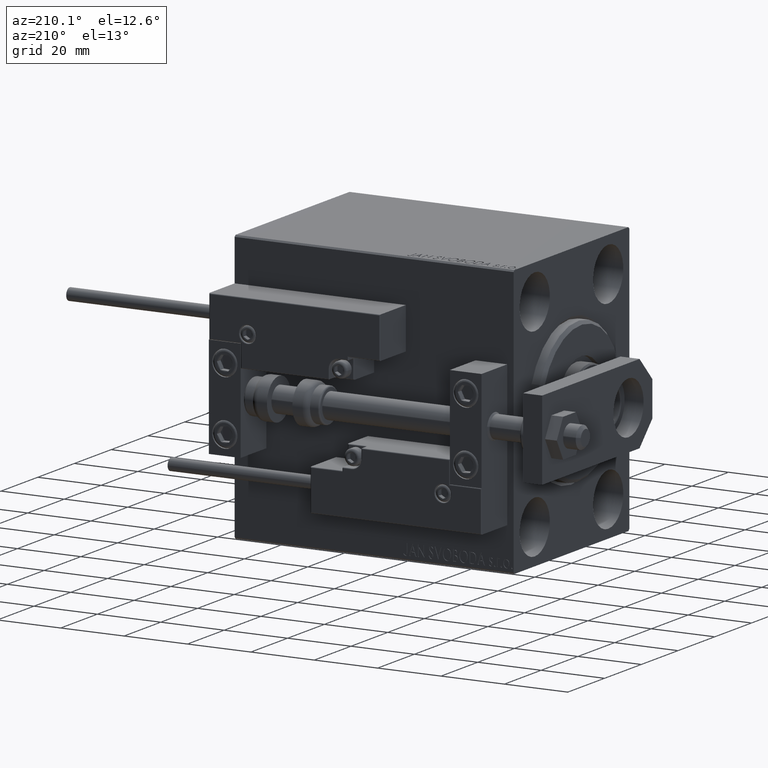
[diagram: clean part render]
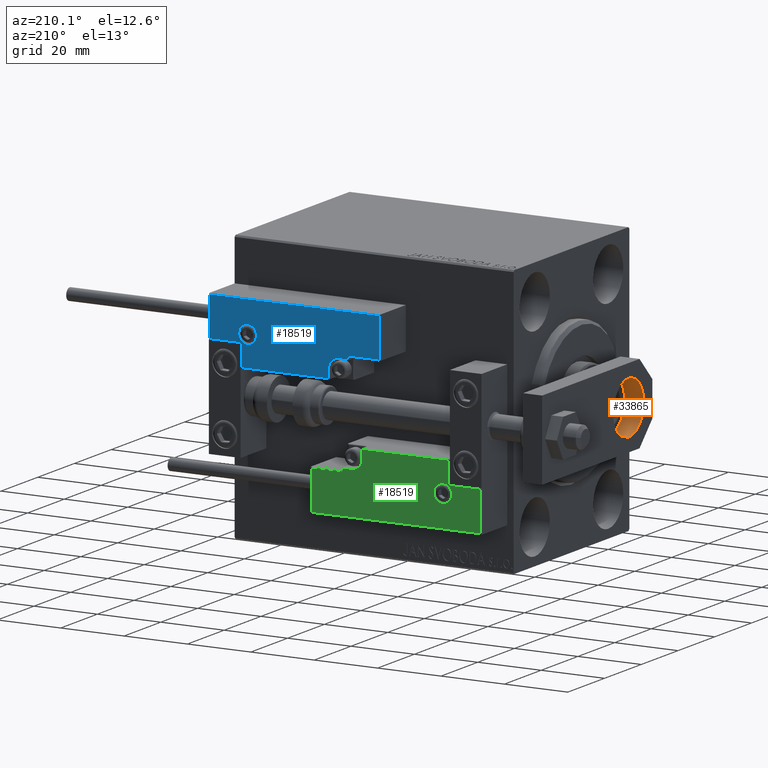
[diagram: same view with three faces highlighted in distinct colors, each labeled with its STEP entity id]
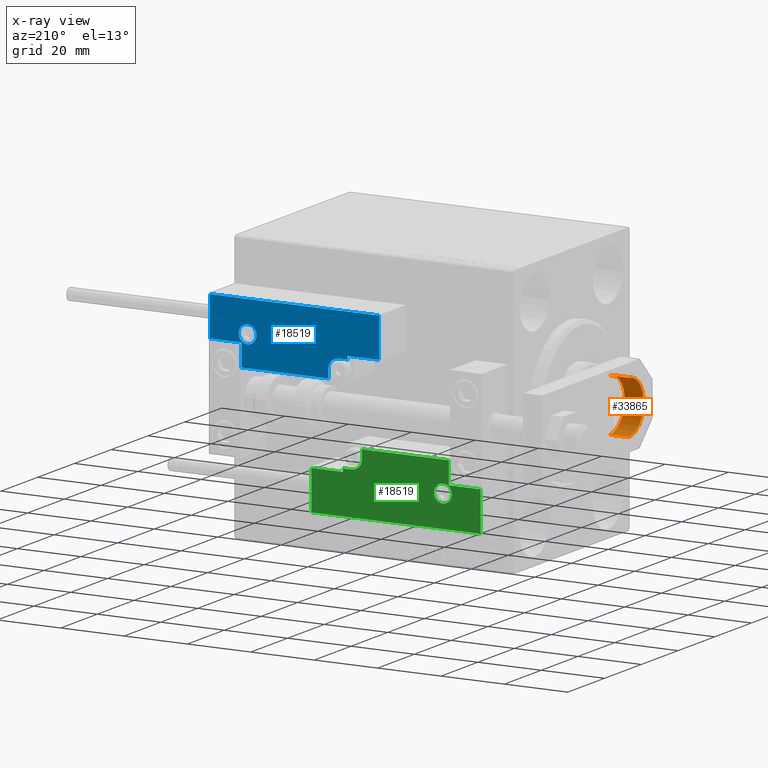
[diagram: x-ray of the same camera — body ghosted, the three highlighted faces saturated]
A machine part, auxiliary view with three faces highlighted in distinct colors.
The next image is the same camera in x-ray (body ghosted, the three faces saturated) — at least one of them is partly hidden behind the body in this view.
Their STEP definitions:

[orange] entity #33865 — the highlighted cylindrical surface (edge-blend (fillet) strip) has radius 8.25 mm, axis along (1, -0, -0).
#493 = VERTEX_POINT ( 'NONE', #17308 ) ;
#1528 = ORIENTED_EDGE ( 'NONE', *, *, #39465, .F. ) ;
#1802 = CIRCLE ( 'NONE', #20448, 8.250000000000000000 ) ;
#3855 = ORIENTED_EDGE ( 'NONE', *, *, #41163, .T. ) ;
#4857 = ORIENTED_EDGE ( 'NONE', *, *, #33574, .F. ) ;
#6760 = CARTESIAN_POINT ( 'NONE',  ( -9.629649721936179265E-32, 12.99999999999999822, 6.000000000000000000 ) ) ;
#6823 = VECTOR ( 'NONE', #46665, 1000.000000000000000 ) ;
#6939 = EDGE_LOOP ( 'NONE', ( #48869, #3855, #4857, #1528 ) ) ;
#7289 = CIRCLE ( 'NONE', #25148, 8.250000000000000000 ) ;
#7501 = CYLINDRICAL_SURFACE ( 'NONE', #28591, 8.250000000000000000 ) ;
#8711 = LINE ( 'NONE', #24232, #6823 ) ;
#10638 = DIRECTION ( 'NONE',  ( 1.000000000000000000, 0.000000000000000000, 0.000000000000000000 ) ) ;
#17308 = CARTESIAN_POINT ( 'NONE',  ( 8.250000000000000000, 13.00000000000000000, 0.000000000000000000 ) ) ;
#18259 = CARTESIAN_POINT ( 'NONE',  ( -9.629649721936179265E-32, 12.99999999999999822, 0.000000000000000000 ) ) ;
#20448 = AXIS2_PLACEMENT_3D ( 'NONE', #18259, #49322, #10638 ) ;
#20907 = CARTESIAN_POINT ( 'NONE',  ( -8.250000000000000000, 12.99999999999999822, 6.000000000000000000 ) ) ;
#22270 = DIRECTION ( 'NONE',  ( -1.000000000000000000, 0.000000000000000000, 0.000000000000000000 ) ) ;
#24232 = CARTESIAN_POINT ( 'NONE',  ( 8.250000000000000000, 13.00000000000000000, 6.000000000000000000 ) ) ;
#24970 = CARTESIAN_POINT ( 'NONE',  ( 8.250000000000000000, 13.00000000000000000, 6.000000000000000000 ) ) ;
#25148 = AXIS2_PLACEMENT_3D ( 'NONE', #46888, #46390, #49699 ) ;
#27096 = DIRECTION ( 'NONE',  ( -0.000000000000000000, -0.000000000000000000, -1.000000000000000000 ) ) ;
#27809 = LINE ( 'NONE', #20907, #39367 ) ;
#28056 = EDGE_CURVE ( 'NONE', #49257, #41314, #7289, .T. ) ;
#28591 = AXIS2_PLACEMENT_3D ( 'NONE', #6760, #27096, #22270 ) ;
#28917 = CARTESIAN_POINT ( 'NONE',  ( -8.250000000000000000, 12.99999999999999822, 6.000000000000000000 ) ) ;
#33574 = EDGE_CURVE ( 'NONE', #36564, #493, #1802, .T. ) ;
#33865 = ADVANCED_FACE ( 'NONE', ( #41640 ), #7501, .F. ) ;
#36564 = VERTEX_POINT ( 'NONE', #46621 ) ;
#39367 = VECTOR ( 'NONE', #43352, 1000.000000000000000 ) ;
#39465 = EDGE_CURVE ( 'NONE', #49257, #36564, #27809, .T. ) ;
#41163 = EDGE_CURVE ( 'NONE', #41314, #493, #8711, .T. ) ;
#41314 = VERTEX_POINT ( 'NONE', #24970 ) ;
#41640 = FACE_OUTER_BOUND ( 'NONE', #6939, .T. ) ;
#43352 = DIRECTION ( 'NONE',  ( -0.000000000000000000, -0.000000000000000000, -1.000000000000000000 ) ) ;
#46390 = DIRECTION ( 'NONE',  ( 0.000000000000000000, 0.000000000000000000, 1.000000000000000000 ) ) ;
#46621 = CARTESIAN_POINT ( 'NONE',  ( -8.250000000000000000, 12.99999999999999822, 0.000000000000000000 ) ) ;
#46665 = DIRECTION ( 'NONE',  ( -0.000000000000000000, -0.000000000000000000, -1.000000000000000000 ) ) ;
#46888 = CARTESIAN_POINT ( 'NONE',  ( -9.629649721936179265E-32, 12.99999999999999822, 6.000000000000000000 ) ) ;
#48869 = ORIENTED_EDGE ( 'NONE', *, *, #28056, .T. ) ;
#49257 = VERTEX_POINT ( 'NONE', #28917 ) ;
#49322 = DIRECTION ( 'NONE',  ( 0.000000000000000000, 0.000000000000000000, 1.000000000000000000 ) ) ;
#49699 = DIRECTION ( 'NONE',  ( 1.000000000000000000, 0.000000000000000000, 0.000000000000000000 ) ) ;

[blue] entity #18519 — the highlighted planar face has unit normal (0, 1, -0).
#421 = DIRECTION ( 'NONE',  ( 1.000000000000000000, 0.000000000000000000, 0.000000000000000000 ) ) ;
#2402 = DIRECTION ( 'NONE',  ( 1.000000000000000000, 5.782411586589357639E-16, -0.000000000000000000 ) ) ;
#2869 = ORIENTED_EDGE ( 'NONE', *, *, #18582, .T. ) ;
#3200 = VECTOR ( 'NONE', #40149, 1000.000000000000000 ) ;
#3211 = LINE ( 'NONE', #50030, #34934 ) ;
#3979 = VERTEX_POINT ( 'NONE', #34012 ) ;
#4081 = CARTESIAN_POINT ( 'NONE',  ( 26.70000000000006324, 20.00000000000001776, 14.00000000000000000 ) ) ;
#4149 = EDGE_LOOP ( 'NONE', ( #42829, #49057, #6400, #14825, #38853, #6617, #29074, #42718, #14215, #5220, #22570 ) ) ;
#4767 = CARTESIAN_POINT ( 'NONE',  ( -16.99999999999999289, 7.300000000000003375, 14.00000000000000000 ) ) ;
#5220 = ORIENTED_EDGE ( 'NONE', *, *, #44157, .T. ) ;
#5614 = EDGE_CURVE ( 'NONE', #33929, #34872, #28161, .T. ) ;
#5842 = EDGE_CURVE ( 'NONE', #3979, #36949, #3211, .T. ) ;
#6400 = ORIENTED_EDGE ( 'NONE', *, *, #5842, .T. ) ;
#6617 = ORIENTED_EDGE ( 'NONE', *, *, #9648, .T. ) ;
#6656 = LINE ( 'NONE', #42032, #43064 ) ;
#7487 = EDGE_LOOP ( 'NONE', ( #41180, #2869 ) ) ;
#8053 = DIRECTION ( 'NONE',  ( 1.000000000000000000, 0.000000000000000000, 0.000000000000000000 ) ) ;
#8382 = DIRECTION ( 'NONE',  ( 1.000000000000000000, -1.734723475976796001E-16, 0.000000000000000000 ) ) ;
#9432 = CARTESIAN_POINT ( 'NONE',  ( -14.79999999999994920, 9.800000000000004263, 14.00000000000000000 ) ) ;
#9648 = EDGE_CURVE ( 'NONE', #36728, #36477, #6656, .T. ) ;
#9999 = DIRECTION ( 'NONE',  ( 0.000000000000000000, -0.000000000000000000, -1.000000000000000000 ) ) ;
#10777 = CIRCLE ( 'NONE', #12404, 2.800000000000000266 ) ;
#11095 = DIRECTION ( 'NONE',  ( -0.000000000000000000, 1.000000000000000000, -0.000000000000000000 ) ) ;
#11119 = DIRECTION ( 'NONE',  ( -0.000000000000000000, 0.000000000000000000, 1.000000000000000000 ) ) ;
#12200 = CARTESIAN_POINT ( 'NONE',  ( -26.69999999999993534, 19.70000000000002061, 14.00000000000000000 ) ) ;
#12404 = AXIS2_PLACEMENT_3D ( 'NONE', #9432, #21381, #40501 ) ;
#12467 = DIRECTION ( 'NONE',  ( 0.000000000000000000, 1.000000000000000000, -0.000000000000000000 ) ) ;
#12810 = CARTESIAN_POINT ( 'NONE',  ( -26.69999999999994600, 7.300000000000005151, 14.00000000000000000 ) ) ;
#13114 = EDGE_CURVE ( 'NONE', #32085, #45173, #23419, .T. ) ;
#13223 = CARTESIAN_POINT ( 'NONE',  ( -11.99999999999994849, 9.800000000000004263, 14.00000000000000000 ) ) ;
#13335 = LINE ( 'NONE', #33455, #19932 ) ;
#13950 = VERTEX_POINT ( 'NONE', #21217 ) ;
#14025 = DIRECTION ( 'NONE',  ( 9.912705577010318647E-16, 1.000000000000000000, 0.000000000000000000 ) ) ;
#14215 = ORIENTED_EDGE ( 'NONE', *, *, #23003, .T. ) ;
#14825 = ORIENTED_EDGE ( 'NONE', *, *, #19333, .T. ) ;
#15438 = FACE_BOUND ( 'NONE', #7487, .T. ) ;
#15690 = FACE_OUTER_BOUND ( 'NONE', #4149, .T. ) ;
#15838 = CARTESIAN_POINT ( 'NONE',  ( 26.70000000000006324, 19.70000000000001705, 14.00000000000000000 ) ) ;
#15934 = CARTESIAN_POINT ( 'NONE',  ( -17.59999999999994813, 9.800000000000004263, 14.00000000000000000 ) ) ;
#16014 = LINE ( 'NONE', #35872, #48754 ) ;
#17055 = DIRECTION ( 'NONE',  ( 1.000000000000000000, -0.000000000000000000, 0.000000000000000000 ) ) ;
#17478 = VERTEX_POINT ( 'NONE', #12200 ) ;
#17486 = CARTESIAN_POINT ( 'NONE',  ( 13.99999999999999822, 6.300000000000001599, 14.00000000000000000 ) ) ;
#18027 = DIRECTION ( 'NONE',  ( 0.000000000000000000, -1.000000000000000000, 0.000000000000000000 ) ) ;
#18519 = ADVANCED_FACE ( 'NONE', ( #15438, #15690 ), #46002, .T. ) ;
#18582 = EDGE_CURVE ( 'NONE', #32788, #36694, #29855, .T. ) ;
#19333 = EDGE_CURVE ( 'NONE', #36949, #43878, #25829, .T. ) ;
#19758 = DIRECTION ( 'NONE',  ( 0.000000000000000000, -0.000000000000000000, -1.000000000000000000 ) ) ;
#19932 = VECTOR ( 'NONE', #2402, 1000.000000000000000 ) ;
#21217 = CARTESIAN_POINT ( 'NONE',  ( -16.69999999999999218, 0.3000000000000032085, 14.00000000000000000 ) ) ;
#21381 = DIRECTION ( 'NONE',  ( 0.000000000000000000, -0.000000000000000000, -1.000000000000000000 ) ) ;
#22069 = VECTOR ( 'NONE', #36239, 1000.000000000000000 ) ;
#22570 = ORIENTED_EDGE ( 'NONE', *, *, #5614, .T. ) ;
#22581 = DIRECTION ( 'NONE',  ( 1.000000000000000000, 0.000000000000000000, 0.000000000000000000 ) ) ;
#23003 = EDGE_CURVE ( 'NONE', #45173, #17478, #44993, .T. ) ;
#23419 = LINE ( 'NONE', #4081, #49661 ) ;
#23522 = CARTESIAN_POINT ( 'NONE',  ( -16.69999999999999218, 7.300000000000003375, 14.00000000000000000 ) ) ;
#24971 = AXIS2_PLACEMENT_3D ( 'NONE', #30965, #19758, #22581 ) ;
#25149 = CARTESIAN_POINT ( 'NONE',  ( -16.69999999999999218, 3.252606517456513302E-15, 14.00000000000000000 ) ) ;
#25829 = CIRCLE ( 'NONE', #24971, 3.299999999999997158 ) ;
#26335 = VECTOR ( 'NONE', #17055, 1000.000000000000000 ) ;
#27010 = CARTESIAN_POINT ( 'NONE',  ( 16.69999999999999929, 7.300000000000009592, 14.00000000000000000 ) ) ;
#28161 = LINE ( 'NONE', #4767, #3200 ) ;
#28522 = EDGE_CURVE ( 'NONE', #36477, #32085, #16014, .T. ) ;
#28746 = CARTESIAN_POINT ( 'NONE',  ( 16.69999999999999929, 6.300000000000003375, 14.00000000000000000 ) ) ;
#29074 = ORIENTED_EDGE ( 'NONE', *, *, #28522, .T. ) ;
#29855 = CIRCLE ( 'NONE', #47743, 2.800000000000000266 ) ;
#30965 = CARTESIAN_POINT ( 'NONE',  ( 13.99999999999999822, 3.000000000000002665, 14.00000000000000000 ) ) ;
#32085 = VERTEX_POINT ( 'NONE', #37467 ) ;
#32788 = VERTEX_POINT ( 'NONE', #15934 ) ;
#33455 = CARTESIAN_POINT ( 'NONE',  ( 17.00000000000000000, 6.300000000000003375, 14.00000000000000000 ) ) ;
#33568 = LINE ( 'NONE', #25149, #47447 ) ;
#33929 = VERTEX_POINT ( 'NONE', #12810 ) ;
#34012 = CARTESIAN_POINT ( 'NONE',  ( 10.69999999999999929, 0.3000000000000032085, 14.00000000000000000 ) ) ;
#34452 = EDGE_CURVE ( 'NONE', #36694, #32788, #10777, .T. ) ;
#34872 = VERTEX_POINT ( 'NONE', #23522 ) ;
#34934 = VECTOR ( 'NONE', #11095, 1000.000000000000000 ) ;
#35872 = CARTESIAN_POINT ( 'NONE',  ( 27.00000000000006395, 7.300000000000007816, 14.00000000000000000 ) ) ;
#36239 = DIRECTION ( 'NONE',  ( -8.006416042969869188E-16, -1.000000000000000000, 0.000000000000000000 ) ) ;
#36477 = VERTEX_POINT ( 'NONE', #27010 ) ;
#36694 = VERTEX_POINT ( 'NONE', #13223 ) ;
#36728 = VERTEX_POINT ( 'NONE', #28746 ) ;
#36949 = VERTEX_POINT ( 'NONE', #37667 ) ;
#37467 = CARTESIAN_POINT ( 'NONE',  ( 26.70000000000006324, 7.300000000000007816, 14.00000000000000000 ) ) ;
#37667 = CARTESIAN_POINT ( 'NONE',  ( 10.69999999999999929, 3.000000000000003109, 14.00000000000000000 ) ) ;
#37722 = EDGE_CURVE ( 'NONE', #13950, #3979, #43313, .T. ) ;
#38853 = ORIENTED_EDGE ( 'NONE', *, *, #41955, .T. ) ;
#40149 = DIRECTION ( 'NONE',  ( 1.000000000000000000, -1.734723475976815230E-16, 0.000000000000000000 ) ) ;
#40315 = LINE ( 'NONE', #44372, #22069 ) ;
#40501 = DIRECTION ( 'NONE',  ( 1.000000000000000000, 0.000000000000000000, 0.000000000000000000 ) ) ;
#40672 = CARTESIAN_POINT ( 'NONE',  ( -26.99999999999993605, 19.70000000000002061, 14.00000000000000000 ) ) ;
#41180 = ORIENTED_EDGE ( 'NONE', *, *, #34452, .T. ) ;
#41247 = AXIS2_PLACEMENT_3D ( 'NONE', #42937, #11119, #8053 ) ;
#41955 = EDGE_CURVE ( 'NONE', #43878, #36728, #13335, .T. ) ;
#42032 = CARTESIAN_POINT ( 'NONE',  ( 16.69999999999999929, 7.000000000000009770, 14.00000000000000000 ) ) ;
#42718 = ORIENTED_EDGE ( 'NONE', *, *, #13114, .T. ) ;
#42829 = ORIENTED_EDGE ( 'NONE', *, *, #48432, .T. ) ;
#42937 = CARTESIAN_POINT ( 'NONE',  ( 0.000000000000000000, 0.000000000000000000, 14.00000000000000000 ) ) ;
#43064 = VECTOR ( 'NONE', #14025, 1000.000000000000000 ) ;
#43313 = LINE ( 'NONE', #47633, #26335 ) ;
#43878 = VERTEX_POINT ( 'NONE', #17486 ) ;
#44157 = EDGE_CURVE ( 'NONE', #17478, #33929, #40315, .T. ) ;
#44372 = CARTESIAN_POINT ( 'NONE',  ( -26.69999999999994600, 7.000000000000005329, 14.00000000000000000 ) ) ;
#44993 = LINE ( 'NONE', #40672, #45464 ) ;
#45173 = VERTEX_POINT ( 'NONE', #15838 ) ;
#45464 = VECTOR ( 'NONE', #49314, 1000.000000000000000 ) ;
#46002 = PLANE ( 'NONE',  #41247 ) ;
#47447 = VECTOR ( 'NONE', #18027, 1000.000000000000000 ) ;
#47505 = CARTESIAN_POINT ( 'NONE',  ( -14.79999999999994920, 9.800000000000004263, 14.00000000000000000 ) ) ;
#47633 = CARTESIAN_POINT ( 'NONE',  ( 11.00000000000000000, 0.3000000000000032085, 14.00000000000000000 ) ) ;
#47743 = AXIS2_PLACEMENT_3D ( 'NONE', #47505, #9999, #421 ) ;
#48432 = EDGE_CURVE ( 'NONE', #34872, #13950, #33568, .T. ) ;
#48754 = VECTOR ( 'NONE', #8382, 1000.000000000000000 ) ;
#49057 = ORIENTED_EDGE ( 'NONE', *, *, #37722, .T. ) ;
#49314 = DIRECTION ( 'NONE',  ( -1.000000000000000000, 6.424901762877063495E-17, -0.000000000000000000 ) ) ;
#49661 = VECTOR ( 'NONE', #12467, 1000.000000000000000 ) ;
#50030 = CARTESIAN_POINT ( 'NONE',  ( 10.69999999999999929, 3.000000000000003109, 14.00000000000000000 ) ) ;

[green] entity #18519 — the highlighted planar face has unit normal (-0, 1, -0).
#421 = DIRECTION ( 'NONE',  ( 1.000000000000000000, 0.000000000000000000, 0.000000000000000000 ) ) ;
#2402 = DIRECTION ( 'NONE',  ( 1.000000000000000000, 5.782411586589357639E-16, -0.000000000000000000 ) ) ;
#2869 = ORIENTED_EDGE ( 'NONE', *, *, #18582, .T. ) ;
#3200 = VECTOR ( 'NONE', #40149, 1000.000000000000000 ) ;
#3211 = LINE ( 'NONE', #50030, #34934 ) ;
#3979 = VERTEX_POINT ( 'NONE', #34012 ) ;
#4081 = CARTESIAN_POINT ( 'NONE',  ( 26.70000000000006324, 20.00000000000001776, 14.00000000000000000 ) ) ;
#4149 = EDGE_LOOP ( 'NONE', ( #42829, #49057, #6400, #14825, #38853, #6617, #29074, #42718, #14215, #5220, #22570 ) ) ;
#4767 = CARTESIAN_POINT ( 'NONE',  ( -16.99999999999999289, 7.300000000000003375, 14.00000000000000000 ) ) ;
#5220 = ORIENTED_EDGE ( 'NONE', *, *, #44157, .T. ) ;
#5614 = EDGE_CURVE ( 'NONE', #33929, #34872, #28161, .T. ) ;
#5842 = EDGE_CURVE ( 'NONE', #3979, #36949, #3211, .T. ) ;
#6400 = ORIENTED_EDGE ( 'NONE', *, *, #5842, .T. ) ;
#6617 = ORIENTED_EDGE ( 'NONE', *, *, #9648, .T. ) ;
#6656 = LINE ( 'NONE', #42032, #43064 ) ;
#7487 = EDGE_LOOP ( 'NONE', ( #41180, #2869 ) ) ;
#8053 = DIRECTION ( 'NONE',  ( 1.000000000000000000, 0.000000000000000000, 0.000000000000000000 ) ) ;
#8382 = DIRECTION ( 'NONE',  ( 1.000000000000000000, -1.734723475976796001E-16, 0.000000000000000000 ) ) ;
#9432 = CARTESIAN_POINT ( 'NONE',  ( -14.79999999999994920, 9.800000000000004263, 14.00000000000000000 ) ) ;
#9648 = EDGE_CURVE ( 'NONE', #36728, #36477, #6656, .T. ) ;
#9999 = DIRECTION ( 'NONE',  ( 0.000000000000000000, -0.000000000000000000, -1.000000000000000000 ) ) ;
#10777 = CIRCLE ( 'NONE', #12404, 2.800000000000000266 ) ;
#11095 = DIRECTION ( 'NONE',  ( -0.000000000000000000, 1.000000000000000000, -0.000000000000000000 ) ) ;
#11119 = DIRECTION ( 'NONE',  ( -0.000000000000000000, 0.000000000000000000, 1.000000000000000000 ) ) ;
#12200 = CARTESIAN_POINT ( 'NONE',  ( -26.69999999999993534, 19.70000000000002061, 14.00000000000000000 ) ) ;
#12404 = AXIS2_PLACEMENT_3D ( 'NONE', #9432, #21381, #40501 ) ;
#12467 = DIRECTION ( 'NONE',  ( 0.000000000000000000, 1.000000000000000000, -0.000000000000000000 ) ) ;
#12810 = CARTESIAN_POINT ( 'NONE',  ( -26.69999999999994600, 7.300000000000005151, 14.00000000000000000 ) ) ;
#13114 = EDGE_CURVE ( 'NONE', #32085, #45173, #23419, .T. ) ;
#13223 = CARTESIAN_POINT ( 'NONE',  ( -11.99999999999994849, 9.800000000000004263, 14.00000000000000000 ) ) ;
#13335 = LINE ( 'NONE', #33455, #19932 ) ;
#13950 = VERTEX_POINT ( 'NONE', #21217 ) ;
#14025 = DIRECTION ( 'NONE',  ( 9.912705577010318647E-16, 1.000000000000000000, 0.000000000000000000 ) ) ;
#14215 = ORIENTED_EDGE ( 'NONE', *, *, #23003, .T. ) ;
#14825 = ORIENTED_EDGE ( 'NONE', *, *, #19333, .T. ) ;
#15438 = FACE_BOUND ( 'NONE', #7487, .T. ) ;
#15690 = FACE_OUTER_BOUND ( 'NONE', #4149, .T. ) ;
#15838 = CARTESIAN_POINT ( 'NONE',  ( 26.70000000000006324, 19.70000000000001705, 14.00000000000000000 ) ) ;
#15934 = CARTESIAN_POINT ( 'NONE',  ( -17.59999999999994813, 9.800000000000004263, 14.00000000000000000 ) ) ;
#16014 = LINE ( 'NONE', #35872, #48754 ) ;
#17055 = DIRECTION ( 'NONE',  ( 1.000000000000000000, -0.000000000000000000, 0.000000000000000000 ) ) ;
#17478 = VERTEX_POINT ( 'NONE', #12200 ) ;
#17486 = CARTESIAN_POINT ( 'NONE',  ( 13.99999999999999822, 6.300000000000001599, 14.00000000000000000 ) ) ;
#18027 = DIRECTION ( 'NONE',  ( 0.000000000000000000, -1.000000000000000000, 0.000000000000000000 ) ) ;
#18519 = ADVANCED_FACE ( 'NONE', ( #15438, #15690 ), #46002, .T. ) ;
#18582 = EDGE_CURVE ( 'NONE', #32788, #36694, #29855, .T. ) ;
#19333 = EDGE_CURVE ( 'NONE', #36949, #43878, #25829, .T. ) ;
#19758 = DIRECTION ( 'NONE',  ( 0.000000000000000000, -0.000000000000000000, -1.000000000000000000 ) ) ;
#19932 = VECTOR ( 'NONE', #2402, 1000.000000000000000 ) ;
#21217 = CARTESIAN_POINT ( 'NONE',  ( -16.69999999999999218, 0.3000000000000032085, 14.00000000000000000 ) ) ;
#21381 = DIRECTION ( 'NONE',  ( 0.000000000000000000, -0.000000000000000000, -1.000000000000000000 ) ) ;
#22069 = VECTOR ( 'NONE', #36239, 1000.000000000000000 ) ;
#22570 = ORIENTED_EDGE ( 'NONE', *, *, #5614, .T. ) ;
#22581 = DIRECTION ( 'NONE',  ( 1.000000000000000000, 0.000000000000000000, 0.000000000000000000 ) ) ;
#23003 = EDGE_CURVE ( 'NONE', #45173, #17478, #44993, .T. ) ;
#23419 = LINE ( 'NONE', #4081, #49661 ) ;
#23522 = CARTESIAN_POINT ( 'NONE',  ( -16.69999999999999218, 7.300000000000003375, 14.00000000000000000 ) ) ;
#24971 = AXIS2_PLACEMENT_3D ( 'NONE', #30965, #19758, #22581 ) ;
#25149 = CARTESIAN_POINT ( 'NONE',  ( -16.69999999999999218, 3.252606517456513302E-15, 14.00000000000000000 ) ) ;
#25829 = CIRCLE ( 'NONE', #24971, 3.299999999999997158 ) ;
#26335 = VECTOR ( 'NONE', #17055, 1000.000000000000000 ) ;
#27010 = CARTESIAN_POINT ( 'NONE',  ( 16.69999999999999929, 7.300000000000009592, 14.00000000000000000 ) ) ;
#28161 = LINE ( 'NONE', #4767, #3200 ) ;
#28522 = EDGE_CURVE ( 'NONE', #36477, #32085, #16014, .T. ) ;
#28746 = CARTESIAN_POINT ( 'NONE',  ( 16.69999999999999929, 6.300000000000003375, 14.00000000000000000 ) ) ;
#29074 = ORIENTED_EDGE ( 'NONE', *, *, #28522, .T. ) ;
#29855 = CIRCLE ( 'NONE', #47743, 2.800000000000000266 ) ;
#30965 = CARTESIAN_POINT ( 'NONE',  ( 13.99999999999999822, 3.000000000000002665, 14.00000000000000000 ) ) ;
#32085 = VERTEX_POINT ( 'NONE', #37467 ) ;
#32788 = VERTEX_POINT ( 'NONE', #15934 ) ;
#33455 = CARTESIAN_POINT ( 'NONE',  ( 17.00000000000000000, 6.300000000000003375, 14.00000000000000000 ) ) ;
#33568 = LINE ( 'NONE', #25149, #47447 ) ;
#33929 = VERTEX_POINT ( 'NONE', #12810 ) ;
#34012 = CARTESIAN_POINT ( 'NONE',  ( 10.69999999999999929, 0.3000000000000032085, 14.00000000000000000 ) ) ;
#34452 = EDGE_CURVE ( 'NONE', #36694, #32788, #10777, .T. ) ;
#34872 = VERTEX_POINT ( 'NONE', #23522 ) ;
#34934 = VECTOR ( 'NONE', #11095, 1000.000000000000000 ) ;
#35872 = CARTESIAN_POINT ( 'NONE',  ( 27.00000000000006395, 7.300000000000007816, 14.00000000000000000 ) ) ;
#36239 = DIRECTION ( 'NONE',  ( -8.006416042969869188E-16, -1.000000000000000000, 0.000000000000000000 ) ) ;
#36477 = VERTEX_POINT ( 'NONE', #27010 ) ;
#36694 = VERTEX_POINT ( 'NONE', #13223 ) ;
#36728 = VERTEX_POINT ( 'NONE', #28746 ) ;
#36949 = VERTEX_POINT ( 'NONE', #37667 ) ;
#37467 = CARTESIAN_POINT ( 'NONE',  ( 26.70000000000006324, 7.300000000000007816, 14.00000000000000000 ) ) ;
#37667 = CARTESIAN_POINT ( 'NONE',  ( 10.69999999999999929, 3.000000000000003109, 14.00000000000000000 ) ) ;
#37722 = EDGE_CURVE ( 'NONE', #13950, #3979, #43313, .T. ) ;
#38853 = ORIENTED_EDGE ( 'NONE', *, *, #41955, .T. ) ;
#40149 = DIRECTION ( 'NONE',  ( 1.000000000000000000, -1.734723475976815230E-16, 0.000000000000000000 ) ) ;
#40315 = LINE ( 'NONE', #44372, #22069 ) ;
#40501 = DIRECTION ( 'NONE',  ( 1.000000000000000000, 0.000000000000000000, 0.000000000000000000 ) ) ;
#40672 = CARTESIAN_POINT ( 'NONE',  ( -26.99999999999993605, 19.70000000000002061, 14.00000000000000000 ) ) ;
#41180 = ORIENTED_EDGE ( 'NONE', *, *, #34452, .T. ) ;
#41247 = AXIS2_PLACEMENT_3D ( 'NONE', #42937, #11119, #8053 ) ;
#41955 = EDGE_CURVE ( 'NONE', #43878, #36728, #13335, .T. ) ;
#42032 = CARTESIAN_POINT ( 'NONE',  ( 16.69999999999999929, 7.000000000000009770, 14.00000000000000000 ) ) ;
#42718 = ORIENTED_EDGE ( 'NONE', *, *, #13114, .T. ) ;
#42829 = ORIENTED_EDGE ( 'NONE', *, *, #48432, .T. ) ;
#42937 = CARTESIAN_POINT ( 'NONE',  ( 0.000000000000000000, 0.000000000000000000, 14.00000000000000000 ) ) ;
#43064 = VECTOR ( 'NONE', #14025, 1000.000000000000000 ) ;
#43313 = LINE ( 'NONE', #47633, #26335 ) ;
#43878 = VERTEX_POINT ( 'NONE', #17486 ) ;
#44157 = EDGE_CURVE ( 'NONE', #17478, #33929, #40315, .T. ) ;
#44372 = CARTESIAN_POINT ( 'NONE',  ( -26.69999999999994600, 7.000000000000005329, 14.00000000000000000 ) ) ;
#44993 = LINE ( 'NONE', #40672, #45464 ) ;
#45173 = VERTEX_POINT ( 'NONE', #15838 ) ;
#45464 = VECTOR ( 'NONE', #49314, 1000.000000000000000 ) ;
#46002 = PLANE ( 'NONE',  #41247 ) ;
#47447 = VECTOR ( 'NONE', #18027, 1000.000000000000000 ) ;
#47505 = CARTESIAN_POINT ( 'NONE',  ( -14.79999999999994920, 9.800000000000004263, 14.00000000000000000 ) ) ;
#47633 = CARTESIAN_POINT ( 'NONE',  ( 11.00000000000000000, 0.3000000000000032085, 14.00000000000000000 ) ) ;
#47743 = AXIS2_PLACEMENT_3D ( 'NONE', #47505, #9999, #421 ) ;
#48432 = EDGE_CURVE ( 'NONE', #34872, #13950, #33568, .T. ) ;
#48754 = VECTOR ( 'NONE', #8382, 1000.000000000000000 ) ;
#49057 = ORIENTED_EDGE ( 'NONE', *, *, #37722, .T. ) ;
#49314 = DIRECTION ( 'NONE',  ( -1.000000000000000000, 6.424901762877063495E-17, -0.000000000000000000 ) ) ;
#49661 = VECTOR ( 'NONE', #12467, 1000.000000000000000 ) ;
#50030 = CARTESIAN_POINT ( 'NONE',  ( 10.69999999999999929, 3.000000000000003109, 14.00000000000000000 ) ) ;